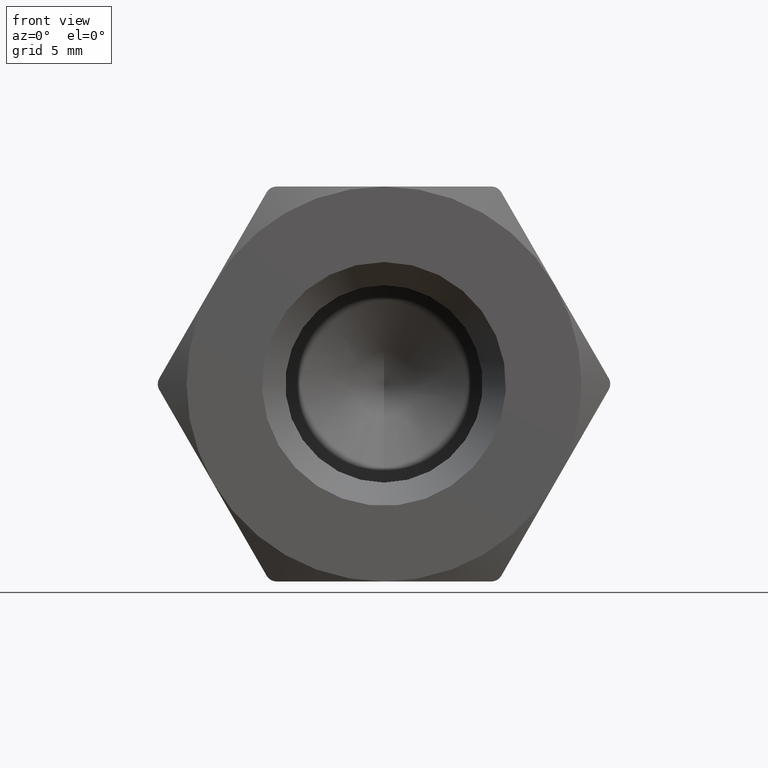
[diagram: clean part render]
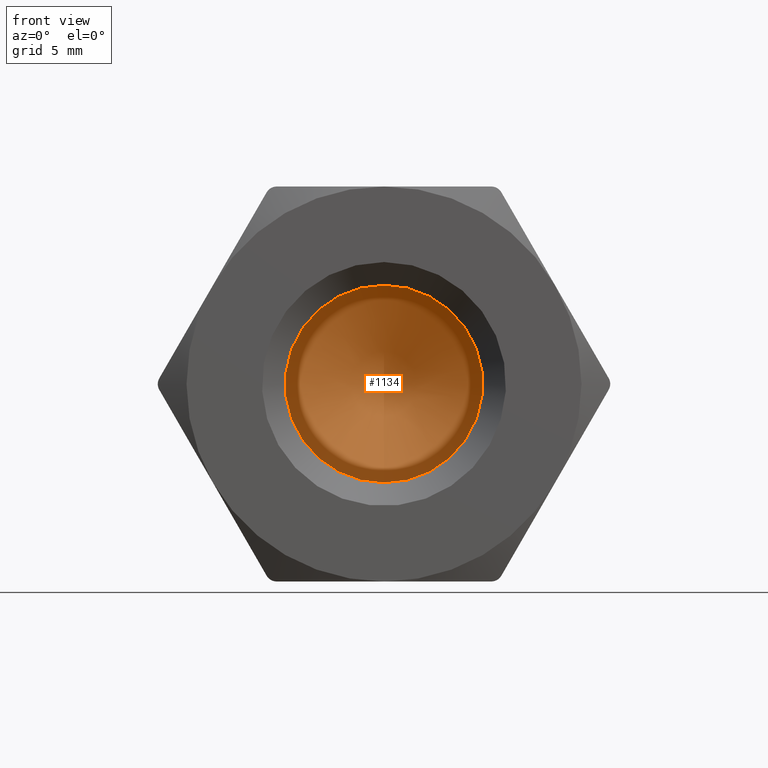
[diagram: same view with one face highlighted and labeled with its STEP entity id]
A machine part, front view. The second image highlights one B-rep face of the part: STEP entity #1134.
In plain terms, the highlighted conical surface has half-angle 59 deg.
Its self-contained STEP definition (entity closure, byte-faithful):
#126 = ORIENTED_EDGE ( 'NONE', *, *, #441, .T. ) ;
#129 = CARTESIAN_POINT ( 'NONE',  ( 0.0000000000000000000, 13.00000000000000200, 0.0000000000000000000 ) ) ;
#232 = DIRECTION ( 'NONE',  ( -0.0000000000000000000, -1.000000000000000000, -0.0000000000000000000 ) ) ;
#264 = VERTEX_POINT ( 'NONE', #405 ) ;
#353 = DIRECTION ( 'NONE',  ( -0.0000000000000000000, -1.000000000000000000, -0.0000000000000000000 ) ) ;
#368 = DIRECTION ( 'NONE',  ( 0.0000000000000000000, 0.0000000000000000000, -1.000000000000000000 ) ) ;
#405 = CARTESIAN_POINT ( 'NONE',  ( 0.0000000000000000000, 13.00000000000000200, -4.249999999999997300 ) ) ;
#441 = EDGE_CURVE ( 'NONE', #264, #264, #845, .T. ) ;
#449 = AXIS2_PLACEMENT_3D ( 'NONE', #129, #232, #1303 ) ;
#531 = AXIS2_PLACEMENT_3D ( 'NONE', #992, #353, #368 ) ;
#805 = FACE_OUTER_BOUND ( 'NONE', #1270, .T. ) ;
#845 = CIRCLE ( 'NONE', #449, 4.249999999999997300 ) ;
#992 = CARTESIAN_POINT ( 'NONE',  ( 0.0000000000000000000, 13.00000000000000200, 0.0000000000000000000 ) ) ;
#1124 = CONICAL_SURFACE ( 'NONE', #531, 4.249999999999997300, 1.029744258676653900 ) ;
#1134 = ADVANCED_FACE ( 'NONE', ( #805 ), #1124, .F. ) ;
#1270 = EDGE_LOOP ( 'NONE', ( #126 ) ) ;
#1303 = DIRECTION ( 'NONE',  ( 0.0000000000000000000, 0.0000000000000000000, -1.000000000000000000 ) ) ;